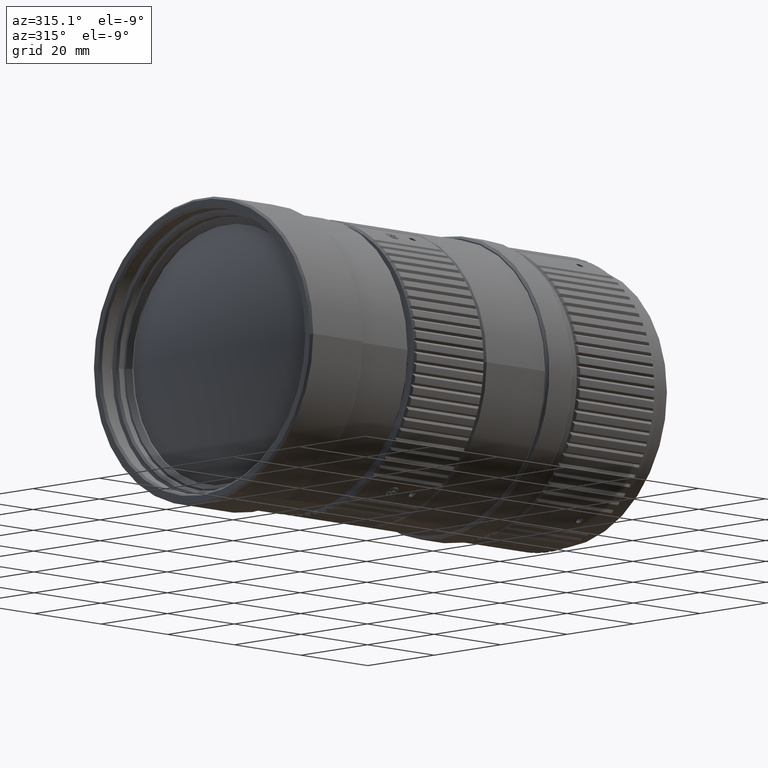
[diagram: clean part render]
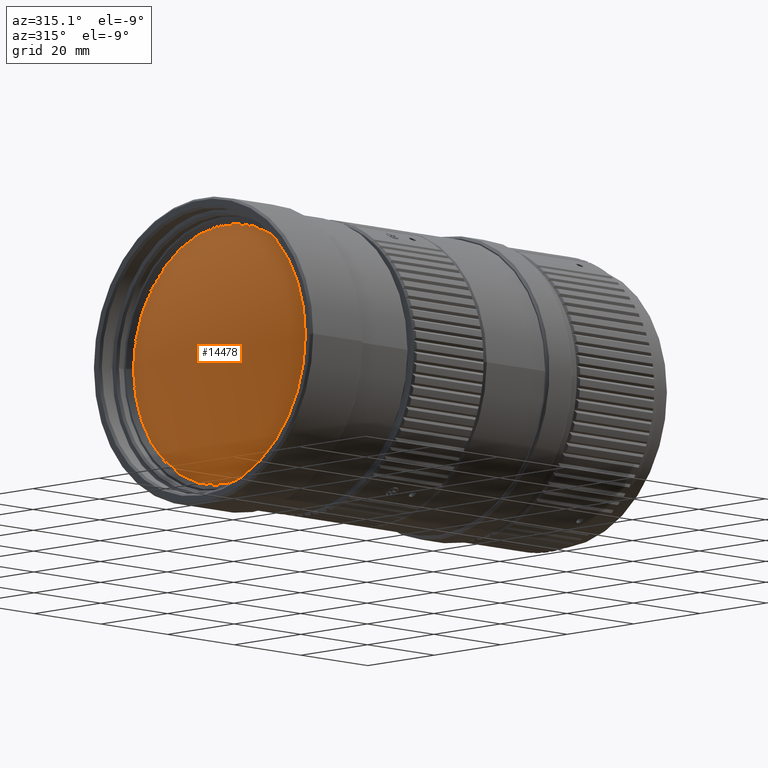
[diagram: same view with one face highlighted and labeled with its STEP entity id]
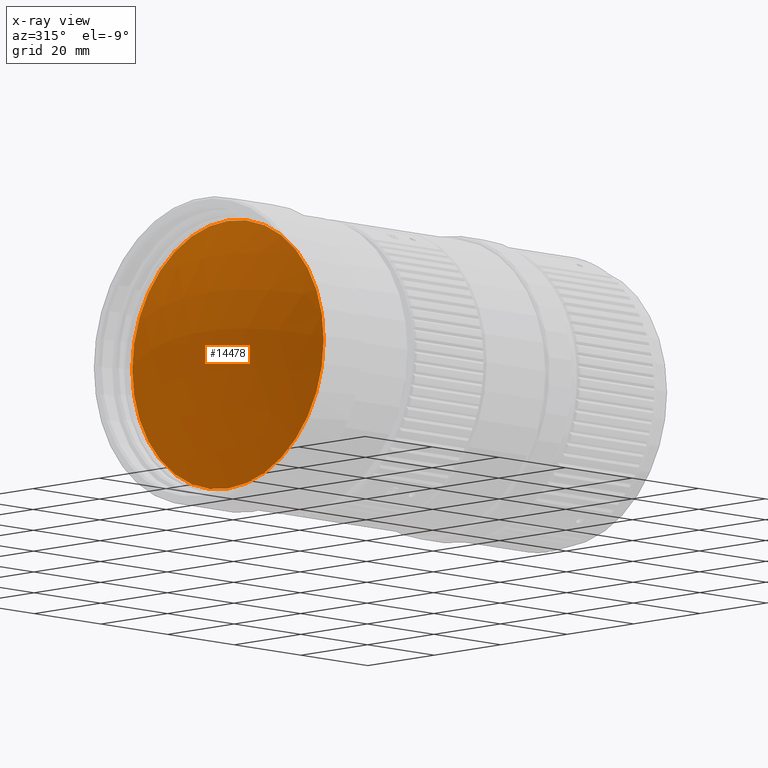
[diagram: x-ray of the same camera — body ghosted, the highlighted face saturated]
A machine part, auxiliary view. The second image highlights one B-rep face of the part: STEP entity #14478.
The next image is the same camera in x-ray: the body ghosted, the highlighted face saturated — about 0% of this face is hidden behind the body in this view.
In plain terms, the highlighted spherical surface has radius 61.645 mm.
Its self-contained STEP definition (entity closure, byte-faithful):
#6331 = DIRECTION ( 'NONE',  ( -1.222739106024586259E-14, -1.000000000000000000, 0.000000000000000000 ) ) ;
#9466 = SPHERICAL_SURFACE ( 'NONE', #53676, 61.64499999908398564 ) ;
#12492 = EDGE_CURVE ( 'NONE', #87653, #93210, #36513, .T. ) ;
#13262 = DIRECTION ( 'NONE',  ( -1.000000000000000000, 1.222922332551199966E-14, 2.606505539706699879E-16 ) ) ;
#14478 = ADVANCED_FACE ( 'NONE', ( #56890 ), #9466, .T. ) ;
#16880 = CARTESIAN_POINT ( 'NONE',  ( 7.141183251424900291, -28.79999993981282458, 2.233192232754930765E-07 ) ) ;
#22286 = EDGE_CURVE ( 'NONE', #93210, #87653, #85263, .T. ) ;
#24317 = CARTESIAN_POINT ( 'NONE',  ( 7.141183251425604617, 28.80000056531717334, -2.349721109981350190E-14 ) ) ;
#30515 = EDGE_LOOP ( 'NONE', ( #48376, #93507 ) ) ;
#32420 = DIRECTION ( 'NONE',  ( -0.4751916318889561341, 1.857857195817493639E-16, -0.8798823290546928799 ) ) ;
#36513 = CIRCLE ( 'NONE', #43369, 28.80000025256499896 ) ;
#43369 = AXIS2_PLACEMENT_3D ( 'NONE', #72452, #104365, #71412 ) ;
#48376 = ORIENTED_EDGE ( 'NONE', *, *, #22286, .T. ) ;
#53676 = AXIS2_PLACEMENT_3D ( 'NONE', #72853, #32420, #65905 ) ;
#56890 = FACE_OUTER_BOUND ( 'NONE', #30515, .T. ) ;
#65905 = DIRECTION ( 'NONE',  ( -0.8798823290546927689, 3.447443652440797861E-16, 0.4751916318889560786 ) ) ;
#71412 = DIRECTION ( 'NONE',  ( -1.222739106024586259E-14, -1.000000000000000000, 0.000000000000000000 ) ) ;
#72452 = CARTESIAN_POINT ( 'NONE',  ( 7.141183251425252898, 3.127521743806494492E-07, 2.233192232754930765E-07 ) ) ;
#72853 = CARTESIAN_POINT ( 'NONE',  ( 61.64499999908326799, 1.136243876764808647E-12, -1.285430095698814057E-12 ) ) ;
#83581 = AXIS2_PLACEMENT_3D ( 'NONE', #88291, #13262, #6331 ) ;
#85263 = CIRCLE ( 'NONE', #83581, 28.80000025256499896 ) ;
#87653 = VERTEX_POINT ( 'NONE', #24317 ) ;
#88291 = CARTESIAN_POINT ( 'NONE',  ( 7.141183251425252898, 3.127521743806494492E-07, 2.233192232754930765E-07 ) ) ;
#93210 = VERTEX_POINT ( 'NONE', #16880 ) ;
#93507 = ORIENTED_EDGE ( 'NONE', *, *, #12492, .T. ) ;
#104365 = DIRECTION ( 'NONE',  ( -1.000000000000000000, 1.222922332551199966E-14, 2.606505539706699879E-16 ) ) ;